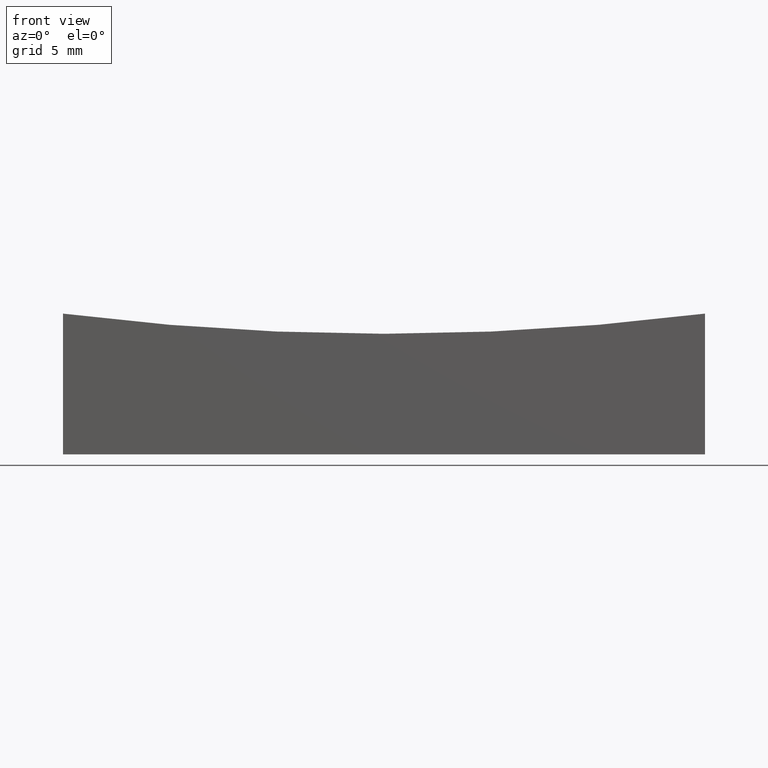
[diagram: clean part render]
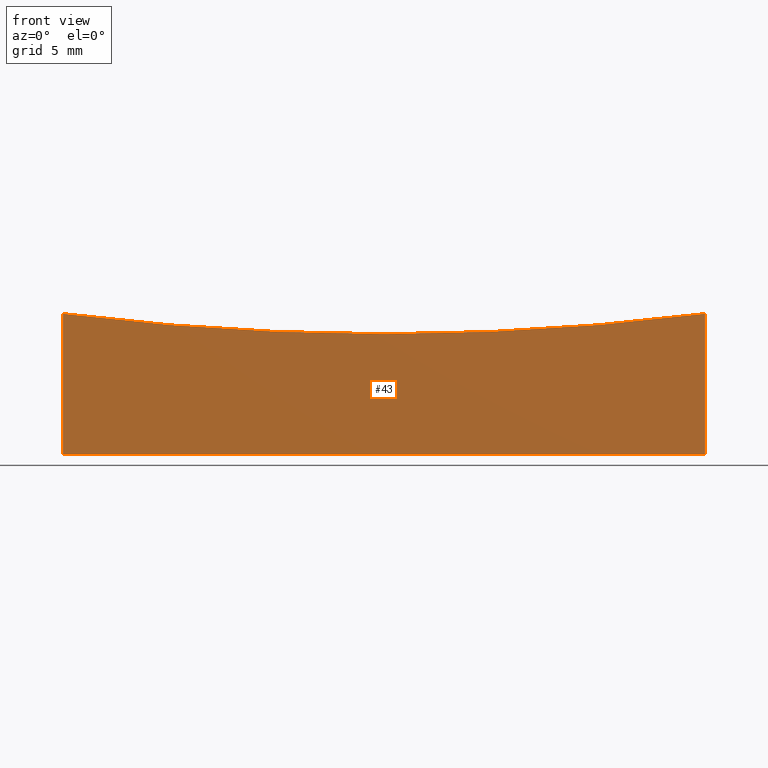
[diagram: same view with one face highlighted and labeled with its STEP entity id]
A machine part, front view. The second image highlights one B-rep face of the part: STEP entity #43.
In plain terms, the highlighted planar face has unit normal (0, 1, 0).
Its self-contained STEP definition (entity closure, byte-faithful):
#16 = AXIS2_PLACEMENT_3D ( 'NONE', #111, #157, #32 ) ;
#22 = CARTESIAN_POINT ( 'NONE',  ( -24.99999999999999645, -12.50000000000000000, 0.000000000000000000 ) ) ;
#24 = FACE_OUTER_BOUND ( 'NONE', #161, .T. ) ;
#32 = DIRECTION ( 'NONE',  ( 5.329070518200749816E-15, 0.000000000000000000, 1.000000000000000000 ) ) ;
#33 = LINE ( 'NONE', #209, #80 ) ;
#36 = EDGE_CURVE ( 'NONE', #49, #128, #237, .T. ) ;
#43 = ADVANCED_FACE ( 'NONE', ( #24 ), #57, .F. ) ;
#49 = VERTEX_POINT ( 'NONE', #120 ) ;
#57 = PLANE ( 'NONE',  #79 ) ;
#59 = EDGE_CURVE ( 'NONE', #235, #128, #101, .T. ) ;
#65 = ORIENTED_EDGE ( 'NONE', *, *, #36, .T. ) ;
#79 = AXIS2_PLACEMENT_3D ( 'NONE', #83, #219, #142 ) ;
#80 = VECTOR ( 'NONE', #252, 1000.000000000000000 ) ;
#81 = CARTESIAN_POINT ( 'NONE',  ( 24.99999999999999645, -12.50000000000000000, 15.00000000000000000 ) ) ;
#83 = CARTESIAN_POINT ( 'NONE',  ( -24.99999999999999645, -12.50000000000000000, 15.00000000000000000 ) ) ;
#86 = VERTEX_POINT ( 'NONE', #133 ) ;
#92 = VECTOR ( 'NONE', #179, 1000.000000000000000 ) ;
#101 = LINE ( 'NONE', #81, #92 ) ;
#106 = ORIENTED_EDGE ( 'NONE', *, *, #155, .F. ) ;
#109 = ORIENTED_EDGE ( 'NONE', *, *, #59, .F. ) ;
#111 = CARTESIAN_POINT ( 'NONE',  ( 0.000000000000000000, -12.49999999999999645, 209.0000000000000284 ) ) ;
#120 = CARTESIAN_POINT ( 'NONE',  ( -24.99999999999999645, -12.50000000000000000, 0.000000000000000000 ) ) ;
#127 = CIRCLE ( 'NONE', #16, 199.6089927833914430 ) ;
#128 = VERTEX_POINT ( 'NONE', #153 ) ;
#133 = CARTESIAN_POINT ( 'NONE',  ( -24.99999999999998934, -12.49999999999999645, 10.96275602806423599 ) ) ;
#136 = EDGE_CURVE ( 'NONE', #86, #49, #33, .T. ) ;
#142 = DIRECTION ( 'NONE',  ( 0.000000000000000000, -0.000000000000000000, 1.000000000000000000 ) ) ;
#153 = CARTESIAN_POINT ( 'NONE',  ( 24.99999999999999645, -12.50000000000000000, 0.000000000000000000 ) ) ;
#155 = EDGE_CURVE ( 'NONE', #86, #235, #127, .T. ) ;
#157 = DIRECTION ( 'NONE',  ( -0.000000000000000000, -1.000000000000000000, -0.000000000000000000 ) ) ;
#161 = EDGE_LOOP ( 'NONE', ( #106, #166, #65, #109 ) ) ;
#166 = ORIENTED_EDGE ( 'NONE', *, *, #136, .T. ) ;
#176 = CARTESIAN_POINT ( 'NONE',  ( 24.99999999999999645, -12.50000000000000000, 10.96275602806423599 ) ) ;
#179 = DIRECTION ( 'NONE',  ( -0.000000000000000000, -0.000000000000000000, -1.000000000000000000 ) ) ;
#181 = DIRECTION ( 'NONE',  ( 1.000000000000000000, 0.000000000000000000, 0.000000000000000000 ) ) ;
#202 = VECTOR ( 'NONE', #181, 1000.000000000000000 ) ;
#209 = CARTESIAN_POINT ( 'NONE',  ( -24.99999999999999645, -12.50000000000000000, 15.00000000000000000 ) ) ;
#219 = DIRECTION ( 'NONE',  ( 0.000000000000000000, 1.000000000000000000, 0.000000000000000000 ) ) ;
#235 = VERTEX_POINT ( 'NONE', #176 ) ;
#237 = LINE ( 'NONE', #22, #202 ) ;
#252 = DIRECTION ( 'NONE',  ( -0.000000000000000000, -0.000000000000000000, -1.000000000000000000 ) ) ;